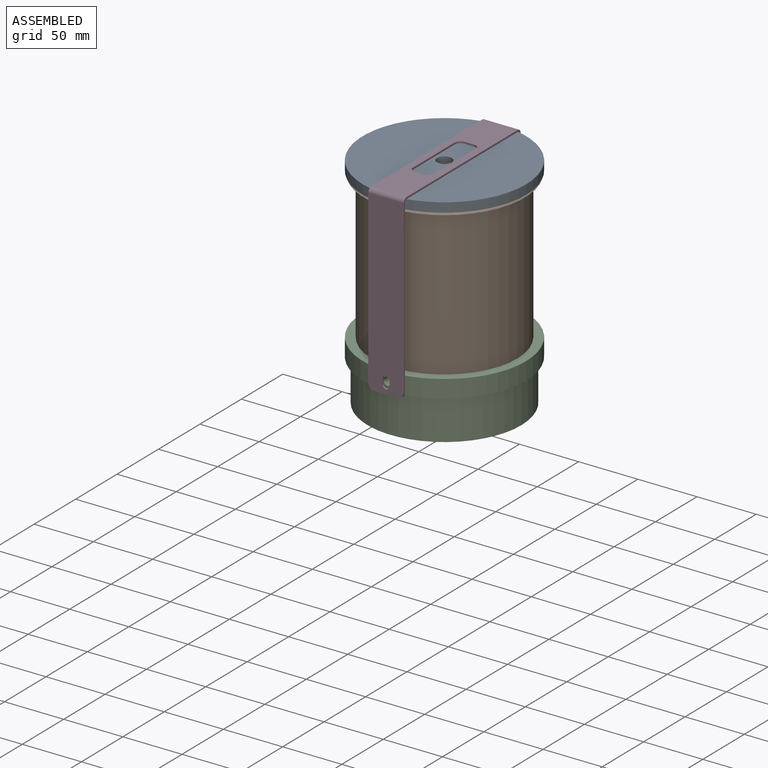
[diagram: assembled view]
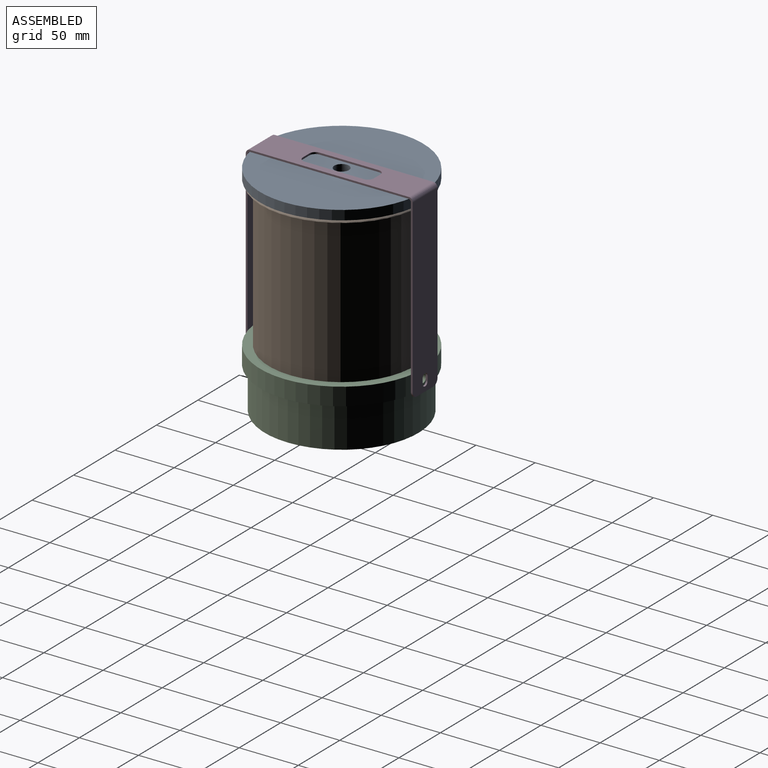
[diagram: assembled view, second angle]
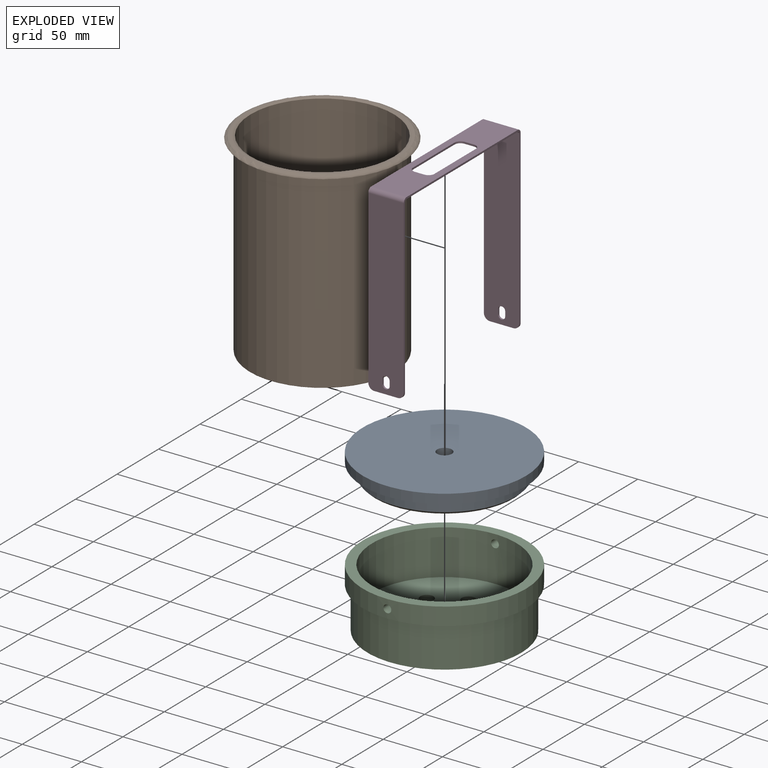
[diagram: exploded view]
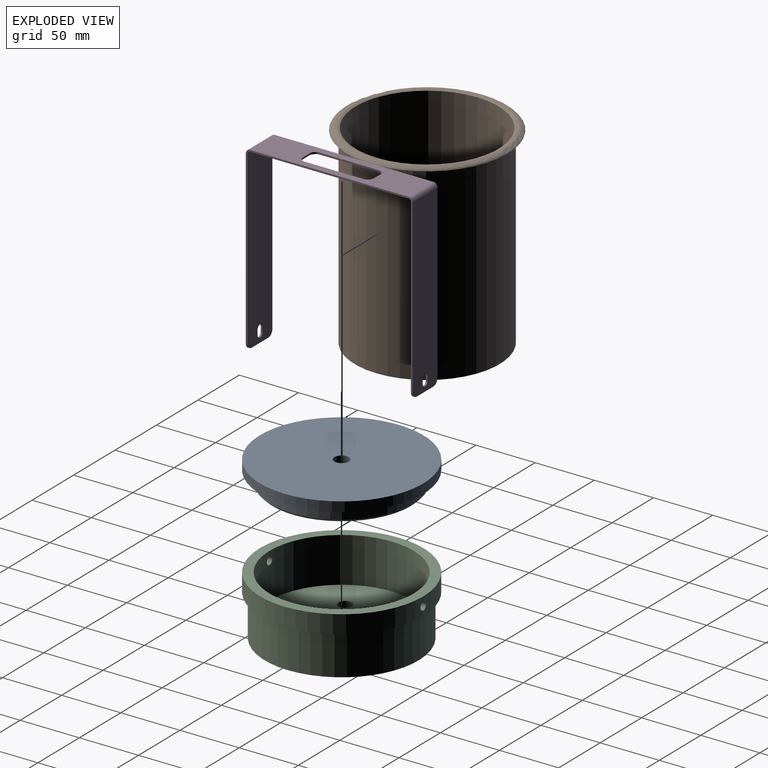
[diagram: exploded view, second angle]
ASSEMBLY  parts=4 mates=5
PART A: 10 faces, bbox 138x20x138 mm
  f0: cylinder r=69mm len=138mm, axis (0,1,0), area 3468.3mm2, adj f1,f2
  f1: plane 138x138mm, normal (0,-1,0), area 2685.3mm2, adj f0,f8
  f2: plane 138x138mm, normal (0,1,0), area 14834.4mm2, adj f0,f5
  f3: cylinder r=60.5mm len=121mm, axis (0,1,0), area 3041.1mm2, adj f8,f9
  f4: plane 117x117mm, normal (0,-1,0), area 10687.7mm2, adj f7,f9
  f5: cylinder r=6.25mm len=12.5mm, axis (0,1,0), area 314.2mm2, adj f2,f6
  f6: plane 12.5x12.5mm, normal (0,1,0), area 59.1mm2, adj f5,f7
  f7: cylinder r=4.5mm len=12mm, axis (0,-1,0), area 339.3mm2, adj f4,f6
  f8: cone r=60.5mm half-angle=45deg, axis (0,1,0), area 1092.9mm2, adj f1,f3
  f9: cone r=58.5mm half-angle=45deg, axis (0,1,0), area 1057.4mm2, adj f3,f4
PART B: 10 faces, bbox 149.2x149.2x165.1 mm
  f0: plane 128.5x128.5mm, normal (0,0,1), area 721mm2, adj f1,f9
  f1: torus R=63.34mm, axis (0,0,-1), area 1916.1mm2, adj f0,f2
  f2: plane 136x136mm, normal (0,0,-1), area 621.1mm2, adj f1,f3
  f3: torus R=63.39mm, axis (0,0,-1), area 2305.1mm2, adj f2,f4
  f4: cylinder r=61.5mm len=163.28mm, axis (0,0,-1), area 63092mm2, adj f3,f5
  f5: torus R=61mm, axis (0,0,-1), area 302.6mm2, adj f4,f6
  f6: plane 122x122mm, normal (0,0,-1), area 11689.9mm2, adj f5
  f7: plane 121x121mm, normal (0,0,1), area 11499mm2, adj f8
  f8: cylinder r=60.5mm len=163.79mm, axis (0,0,-1), area 62263.4mm2, adj f7,f9
  f9: torus R=63.34mm, axis (0,0,-1), area 801.2mm2, adj f0,f8
PART C: 30 faces, bbox 138x138x50 mm
  f0: cylinder r=69mm len=138mm, axis (0,0,1), area 6434.6mm2, adj f2,f5,f28,f29
  f1: cylinder r=61mm len=122mm, axis (0,0,1), area 14495.9mm2, adj f2,f6,f28,f29
  f2: plane 138x138mm, normal (0,0,1), area 3267.3mm2, adj f0,f1
  f3: plane 130x130mm, normal (0,0,-1), area 13033.7mm2, adj f4,f7,f10,f13,f16,f19,f22,f25
  f4: cylinder r=65mm len=130mm, axis (0,0,1), area 14294.2mm2, adj f3,f5
  f5: plane 138x138mm, normal (0,0,-1), area 1683.9mm2, adj f0,f4
  f6: plane 122x122mm, normal (0,0,1), area 10994.1mm2, adj f1,f9,f12,f15,f18,f21,f24,f27
  f7: cylinder r=3.3mm len=6.6mm, axis (0,0,1), area 114mm2, adj f3,f8
  f8: plane 11.25x11.25mm, normal (0,0,1), area 65.2mm2, adj f7,f9
  f9: cylinder r=5.62mm len=11.25mm, axis (0,0,1), area 229.7mm2, adj f6,f8
  f10: cylinder r=3.3mm len=6.6mm, axis (0,0,1), area 114mm2, adj f3,f11
  f11: plane 11.25x11.25mm, normal (0,0,1), area 65.2mm2, adj f10,f12
  f12: cylinder r=5.62mm len=11.25mm, axis (0,0,1), area 229.7mm2, adj f6,f11
  f13: cylinder r=3.3mm len=6.6mm, axis (0,0,1), area 114mm2, adj f3,f14
  f14: plane 11.25x11.25mm, normal (0,0,1), area 65.2mm2, adj f13,f15
  f15: cylinder r=5.62mm len=11.25mm, axis (0,0,1), area 229.7mm2, adj f6,f14
  f16: cylinder r=3.3mm len=6.6mm, axis (0,0,1), area 114mm2, adj f3,f17
  f17: plane 11.25x11.25mm, normal (0,0,1), area 65.2mm2, adj f16,f18
  f18: cylinder r=5.62mm len=11.25mm, axis (0,0,1), area 229.7mm2, adj f6,f17
  f19: cylinder r=3.3mm len=6.6mm, axis (0,0,1), area 114mm2, adj f3,f20
  f20: plane 11.25x11.25mm, normal (0,0,1), area 65.2mm2, adj f19,f21
  f21: cylinder r=5.62mm len=11.25mm, axis (0,0,1), area 229.7mm2, adj f6,f20
  f22: cylinder r=3.3mm len=6.6mm, axis (0,0,1), area 114mm2, adj f3,f23
  f23: plane 11.25x11.25mm, normal (0,0,1), area 65.2mm2, adj f22,f24
  f24: cylinder r=5.62mm len=11.25mm, axis (0,0,1), area 229.7mm2, adj f6,f23
  f25: cylinder r=3.3mm len=6.6mm, axis (0,0,1), area 114mm2, adj f3,f26
  f26: plane 11.25x11.25mm, normal (0,0,1), area 65.2mm2, adj f25,f27
  f27: cylinder r=5.62mm len=11.25mm, axis (0,0,1), area 229.7mm2, adj f6,f26
  f28: cylinder r=3.3mm len=8.09mm, axis (0,-1,0), area 166mm2, adj f0,f1
  f29: cylinder r=3.3mm len=8.09mm, axis (0,1,0), area 166mm2, adj f0,f1
PART D: 42 faces, bbox 30x141x153.5 mm
  f0: plane 134x1.5mm, normal (-1,0,0), area 201mm2, adj f10,f11,f24,f39
  f1: plane 134x1.5mm, normal (1,0,0), area 201mm2, adj f10,f11,f23,f38
  f2: cylinder r=5mm len=5mm, axis (0,0,-1), area 11.8mm2, adj f3,f9,f10,f11
  f3: plane 8x1.5mm, normal (0,1,0), area 12mm2, adj f2,f4,f10,f11
  f4: cylinder r=5mm len=5mm, axis (0,0,-1), area 11.8mm2, adj f3,f5,f10,f11
  f5: plane 50x1.5mm, normal (-1,0,0), area 75mm2, adj f4,f6,f10,f11
  f6: cylinder r=5mm len=5mm, axis (0,0,-1), area 11.8mm2, adj f5,f7,f10,f11
  f7: plane 8x1.5mm, normal (0,-1,0), area 12mm2, adj f6,f8,f10,f11
  f8: cylinder r=5mm len=5mm, axis (0,0,-1), area 11.8mm2, adj f7,f9,f10,f11
  f9: plane 50x1.5mm, normal (1,0,0), area 75mm2, adj f2,f8,f10,f11
  f10: plane 134x30mm, normal (0,0,-1), area 2961.5mm2, adj f0,f1,f2,f3,f4,f5,f6,f7
  f11: plane 134x30mm, normal (0,0,1), area 2961.5mm2, adj f0,f1,f2,f3,f4,f5,f6,f7
  f12: plane 20x1.5mm, normal (0,0,-1), area 30mm2, adj f13,f20,f21,f22
  f13: cylinder r=5mm len=5mm, axis (0,1,0), area 11.8mm2, adj f12,f14,f21,f22
  f14: plane 145x1.5mm, normal (-1,0,0), area 217.5mm2, adj f13,f21,f22,f24
  f15: plane 145x1.5mm, normal (1,0,0), area 217.5mm2, adj f20,f21,f22,f23
  f16: cylinder r=3mm len=6mm, axis (0,1,0), area 14.1mm2, adj f17,f19,f21,f22
  f17: plane 4x1.5mm, normal (1,0,0), area 6mm2, adj f16,f18,f21,f22
  f18: cylinder r=3mm len=6mm, axis (0,1,0), area 14.1mm2, adj f17,f19,f21,f22
  f19: plane 4x1.5mm, normal (-1,0,0), area 6mm2, adj f16,f18,f21,f22
  f20: cylinder r=5mm len=5mm, axis (0,1,0), area 11.8mm2, adj f12,f15,f21,f22
  f21: plane 150x30mm, normal (0,1,0), area 4437mm2, adj f12,f13,f14,f15,f16,f17,f18,f19
  f22: plane 150x30mm, normal (0,-1,0), area 4437mm2, adj f12,f13,f14,f15,f16,f17,f18,f19
  f23: plane 3.5x3.5mm, normal (1,0,0), area 6.5mm2, adj f1,f15,f25,f26
  f24: plane 3.5x3.5mm, normal (-1,0,0), area 6.5mm2, adj f0,f14,f25,f26
  f25: cylinder r=3.5mm len=30mm, axis (1,0,0), area 164.9mm2, adj f11,f22,f23,f24
  f26: cylinder r=2mm len=30mm, axis (1,0,0), area 94.2mm2, adj f10,f21,f23,f24
  f27: plane 145x1.5mm, normal (1,0,0), area 217.5mm2, adj f35,f36,f37,f38
  f28: plane 145x1.5mm, normal (-1,0,0), area 217.5mm2, adj f29,f36,f37,f39
  f29: cylinder r=5mm len=5mm, axis (0,-1,0), area 11.8mm2, adj f28,f30,f36,f37
  f30: plane 20x1.5mm, normal (0,0,-1), area 30mm2, adj f29,f35,f36,f37
  f31: cylinder r=3mm len=6mm, axis (0,-1,0), area 14.1mm2, adj f32,f34,f36,f37
  f32: plane 4x1.5mm, normal (-1,0,0), area 6mm2, adj f31,f33,f36,f37
  f33: cylinder r=3mm len=6mm, axis (0,-1,0), area 14.1mm2, adj f32,f34,f36,f37
  f34: plane 4x1.5mm, normal (1,0,0), area 6mm2, adj f31,f33,f36,f37
  f35: cylinder r=5mm len=5mm, axis (0,-1,0), area 11.8mm2, adj f27,f30,f36,f37
  f36: plane 150x30mm, normal (0,-1,0), area 4437mm2, adj f27,f28,f29,f30,f31,f32,f33,f34
  f37: plane 150x30mm, normal (0,1,0), area 4437mm2, adj f27,f28,f29,f30,f31,f32,f33,f34
  f38: plane 3.5x3.5mm, normal (1,0,0), area 6.5mm2, adj f1,f27,f40,f41
  f39: plane 3.5x3.5mm, normal (-1,0,0), area 6.5mm2, adj f0,f28,f40,f41
  f40: cylinder r=3.5mm len=30mm, axis (1,0,0), area 164.9mm2, adj f11,f37,f38,f39
  f41: cylinder r=2mm len=30mm, axis (1,0,0), area 94.2mm2, adj f10,f36,f38,f39
PLACE A rot(axis=(1,0,0),90deg) t=(-120.07,102.58,455.43)mm
PLACE B t=(-119.07,102.58,282.43)mm
PLACE C t=(-120.07,102.58,320.43)mm
PLACE D t=(-120.07,102.58,379.43)mm
MATE cylindrical B.f1 <-> C.f0  axis (0,0,-1) through (-120.07,102.58,364.57)mm
MATE cylindrical A.f0 <-> B.f1  axis (0,0,1) through (-120.07,102.58,455.43)mm
MATE planar B.f1 <-> C.f0  axis (0,0,-1) through (-120.07,102.58,282.43)mm
MATE planar B.f1 <-> A.f0  axis (0,0,1) through (-120.07,102.58,447.43)mm
MATE planar D.f10 <-> A.f0  axis (0,0,-1) through (-120.07,102.58,455.43)mm
